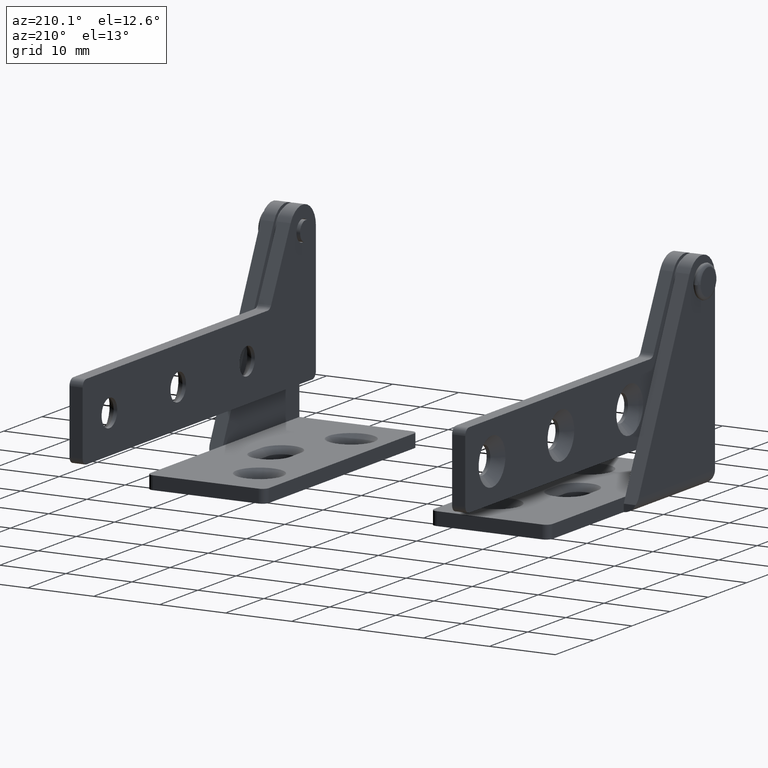
[diagram: clean part render]
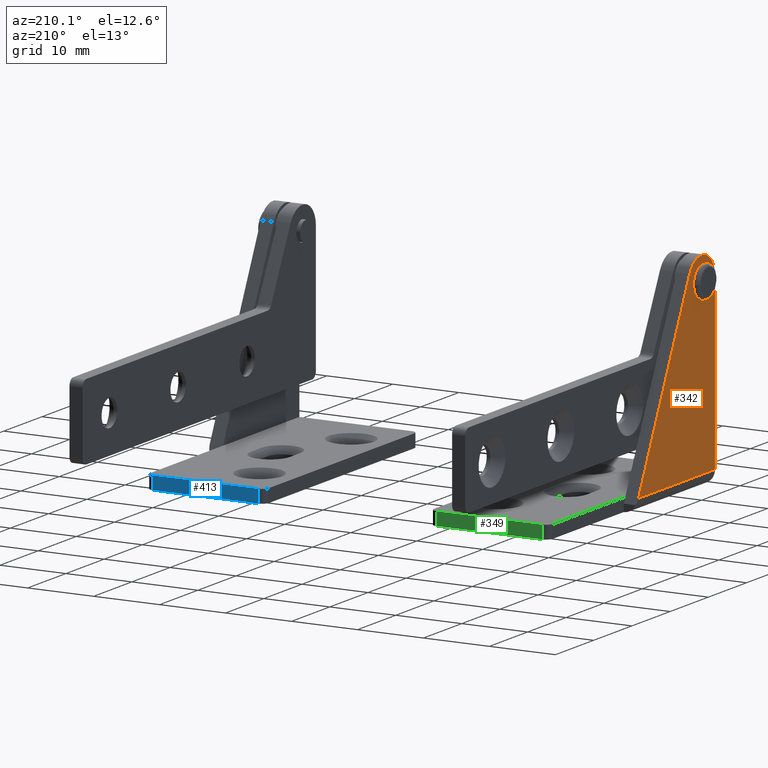
[diagram: same view with three faces highlighted in distinct colors, each labeled with its STEP entity id]
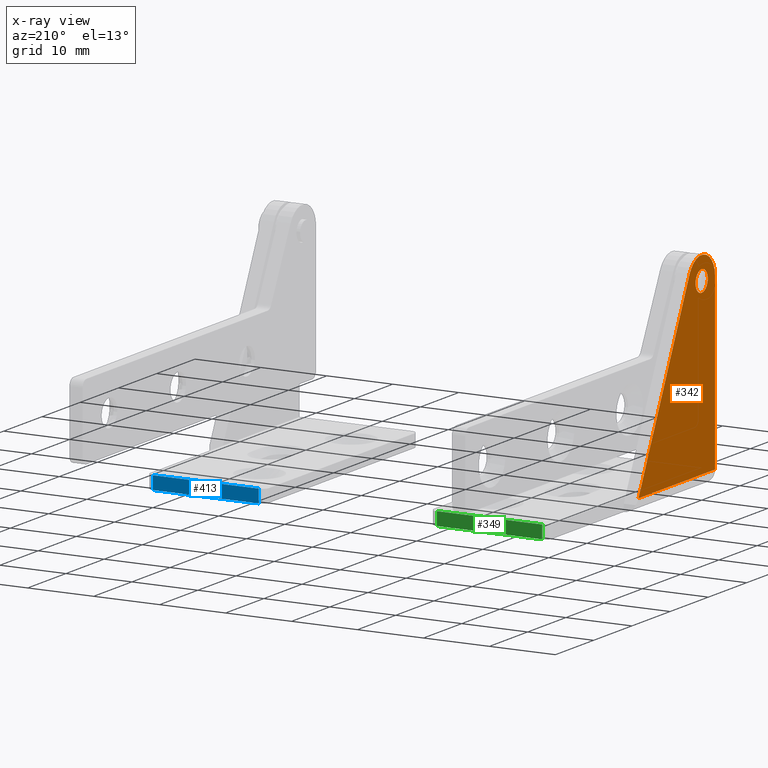
[diagram: x-ray of the same camera — body ghosted, the three highlighted faces saturated]
A machine part, auxiliary view with three faces highlighted in distinct colors.
The next image is the same camera in x-ray (body ghosted, the three faces saturated) — at least one of them is partly hidden behind the body in this view.
Their STEP definitions:

[orange] entity #342 — the highlighted planar face has unit normal (-1, 0, 0).
#342=ADVANCED_FACE('',(#561,#562),#560,.T.);
#560=PLANE('',#2083);
#561=FACE_OUTER_BOUND('',#2084,.T.);
#562=FACE_BOUND('',#2085,.T.);
#2080=CARTESIAN_POINT('',(0.00000000000E+000,-5.50000000000E+000,-2.90035143471E+001));
#2081=DIRECTION('',(-1.00000000000E+000,0.00000000000E+000,0.00000000000E+000));
#2082=DIRECTION('',(0.00000000000E+000,0.00000000000E+000,1.00000000000E+000));
#2083=AXIS2_PLACEMENT_3D('',#2080,#2081,#2082);
#2084=EDGE_LOOP('',(#3068,#3069,#3070,#3071));
#2085=EDGE_LOOP('',(#3072,#3073,#3074));
#3068=ORIENTED_EDGE('',*,*,#3756,.T.);
#3069=ORIENTED_EDGE('',*,*,#3757,.T.);
#3070=ORIENTED_EDGE('',*,*,#3758,.T.);
#3071=ORIENTED_EDGE('',*,*,#3759,.T.);
#3072=ORIENTED_EDGE('',*,*,#3760,.T.);
#3073=ORIENTED_EDGE('',*,*,#3761,.T.);
#3074=ORIENTED_EDGE('',*,*,#3762,.T.);
#3756=EDGE_CURVE('',#4210,#4211,#4212,.T.);
#3757=EDGE_CURVE('',#4211,#4218,#4219,.T.);
#3758=EDGE_CURVE('',#4218,#4225,#4226,.T.);
#3759=EDGE_CURVE('',#4225,#4210,#4232,.T.);
#3760=EDGE_CURVE('',#4238,#4239,#4240,.T.);
#3761=EDGE_CURVE('',#4239,#4246,#4247,.T.);
#3762=EDGE_CURVE('',#4246,#4238,#4253,.T.);
#4210=VERTEX_POINT('',#6493);
#4211=VERTEX_POINT('',#6494);
#4212=LINE('',#6495,#6496);
#4218=VERTEX_POINT('',#6498);
#4219=LINE('',#6499,#6500);
#4225=VERTEX_POINT('',#6502);
#4226=LINE('',#6503,#6504);
#4232=CIRCLE('',#6509,3.50000000000E+000);
#4238=VERTEX_POINT('',#6510);
#4239=VERTEX_POINT('',#6511);
#4240=CIRCLE('',#6515,1.60000000000E+000);
#4246=VERTEX_POINT('',#6516);
#4247=CIRCLE('',#6520,1.60000000000E+000);
#4253=CIRCLE('',#6524,1.60000000000E+000);
#6493=CARTESIAN_POINT('',(0.00000000000E+000,3.14915861262E+000,1.52735065801E+000));
#6494=CARTESIAN_POINT('',(0.00000000000E+000,1.65000000000E+001,-2.60000000000E+001));
#6495=CARTESIAN_POINT('',(0.00000000000E+000,3.14915861262E+000,1.52735065801E+000));
#6496=VECTOR('',#6497,3.05941170816E+001);
#6497=DIRECTION('',(0.00000000000E+000,4.36385902289E-001,-8.99759603607E-001));
#6498=CARTESIAN_POINT('',(0.00000000000E+000,-3.50000000000E+000,-2.60000000000E+001));
#6499=CARTESIAN_POINT('',(0.00000000000E+000,1.65000000000E+001,-2.60000000000E+001));
#6500=VECTOR('',#6501,2.00000000000E+001);
#6501=DIRECTION('',(0.00000000000E+000,-1.00000000000E+000,0.00000000000E+000));
#6502=CARTESIAN_POINT('',(0.00000000000E+000,-3.50000000000E+000,-1.82610864410E-014));
#6503=CARTESIAN_POINT('',(0.00000000000E+000,-3.50000000000E+000,-2.60000000000E+001));
#6504=VECTOR('',#6505,2.60000000000E+001);
#6505=DIRECTION('',(0.00000000000E+000,1.20074890202E-014,1.00000000000E+000));
#6506=CARTESIAN_POINT('',(0.00000000000E+000,0.00000000000E+000,0.00000000000E+000));
#6507=DIRECTION('',(-1.00000000000E+000,0.00000000000E+000,0.00000000000E+000));
#6508=DIRECTION('',(-0.00000000000E+000,-0.00000000000E+000,-1.00000000000E+000));
#6509=AXIS2_PLACEMENT_3D('',#6506,#6507,#6508);
#6510=CARTESIAN_POINT('',(0.00000000000E+000,1.60000000000E+000,0.00000000000E+000));
#6511=CARTESIAN_POINT('',(0.00000000000E+000,-1.66076896601E-004,1.59999999138E+000));
#6512=CARTESIAN_POINT('',(0.00000000000E+000,0.00000000000E+000,0.00000000000E+000));
#6513=DIRECTION('',(1.00000000000E+000,0.00000000000E+000,0.00000000000E+000));
#6514=DIRECTION('',(0.00000000000E+000,1.00000000000E+000,-1.22460635382E-016));
#6515=AXIS2_PLACEMENT_3D('',#6512,#6513,#6514);
#6516=CARTESIAN_POINT('',(0.00000000000E+000,8.72717015901E-006,-1.59999999998E+000));
#6517=CARTESIAN_POINT('',(0.00000000000E+000,0.00000000000E+000,0.00000000000E+000));
#6518=DIRECTION('',(1.00000000000E+000,0.00000000000E+000,0.00000000000E+000));
#6519=DIRECTION('',(0.00000000000E+000,1.00000000000E+000,-1.22460635382E-016));
#6520=AXIS2_PLACEMENT_3D('',#6517,#6518,#6519);
#6521=CARTESIAN_POINT('',(0.00000000000E+000,0.00000000000E+000,0.00000000000E+000));
#6522=DIRECTION('',(1.00000000000E+000,0.00000000000E+000,0.00000000000E+000));
#6523=DIRECTION('',(0.00000000000E+000,1.00000000000E+000,-1.22460635382E-016));
#6524=AXIS2_PLACEMENT_3D('',#6521,#6522,#6523);

[blue] entity #413 — the highlighted planar face has unit normal (0, 1, 0).
#413=ADVANCED_FACE('',(#1296),#1295,.T.);
#1295=PLANE('',#2543);
#1296=FACE_OUTER_BOUND('',#2544,.T.);
#2540=CARTESIAN_POINT('',(2.06000000000E+001,-4.35000000000E+001,-2.82000000000E+001));
#2541=DIRECTION('',(0.00000000000E+000,-1.00000000000E+000,2.40073338193E-014));
#2542=DIRECTION('',(0.00000000000E+000,2.40073338193E-014,1.00000000000E+000));
#2543=AXIS2_PLACEMENT_3D('',#2540,#2541,#2542);
#2544=EDGE_LOOP('',(#3446,#3447,#3448,#3449));
#3446=ORIENTED_EDGE('',*,*,#3952,.T.);
#3447=ORIENTED_EDGE('',*,*,#3966,.F.);
#3448=ORIENTED_EDGE('',*,*,#3930,.F.);
#3449=ORIENTED_EDGE('',*,*,#3967,.T.);
#3930=EDGE_CURVE('',#5361,#5368,#5369,.T.);
#3952=EDGE_CURVE('',#5519,#5512,#5520,.T.);
#3966=EDGE_CURVE('',#5368,#5512,#5615,.T.);
#3967=EDGE_CURVE('',#5361,#5519,#5621,.T.);
#5361=VERTEX_POINT('',#7173);
#5368=VERTEX_POINT('',#7178);
#5369=LINE('',#7179,#7180);
#5512=VERTEX_POINT('',#7271);
#5519=VERTEX_POINT('',#7276);
#5520=LINE('',#7277,#7278);
#5615=LINE('',#7337,#7338);
#5621=LINE('',#7340,#7341);
#7173=CARTESIAN_POINT('',(1.90000000000E+001,-4.35000000000E+001,-2.80000000000E+001));
#7178=CARTESIAN_POINT('',(3.00000000000E+000,-4.35000000000E+001,-2.80000000000E+001));
#7179=CARTESIAN_POINT('',(1.90000000000E+001,-4.35000000000E+001,-2.80000000000E+001));
#7180=VECTOR('',#7181,1.60000000000E+001);
#7181=DIRECTION('',(-1.00000000000E+000,0.00000000000E+000,0.00000000000E+000));
#7271=CARTESIAN_POINT('',(3.00000000000E+000,-4.35000000000E+001,-2.60000000000E+001));
#7276=CARTESIAN_POINT('',(1.90000000000E+001,-4.35000000000E+001,-2.60000000000E+001));
#7277=CARTESIAN_POINT('',(1.90000000000E+001,-4.35000000000E+001,-2.60000000000E+001));
#7278=VECTOR('',#7279,1.60000000000E+001);
#7279=DIRECTION('',(-1.00000000000E+000,0.00000000000E+000,0.00000000000E+000));
#7337=CARTESIAN_POINT('',(3.00000000000E+000,-4.35000000000E+001,-2.80000000000E+001));
#7338=VECTOR('',#7339,2.00000000000E+000);
#7339=DIRECTION('',(0.00000000000E+000,2.48689957516E-014,1.00000000000E+000));
#7340=CARTESIAN_POINT('',(1.90000000000E+001,-4.35000000000E+001,-2.80000000000E+001));
#7341=VECTOR('',#7342,2.00000000000E+000);
#7342=DIRECTION('',(0.00000000000E+000,2.48689957516E-014,1.00000000000E+000));

[green] entity #349 — the highlighted planar face has unit normal (0, 1, 0).
#349=ADVANCED_FACE('',(#635),#634,.T.);
#634=PLANE('',#2122);
#635=FACE_OUTER_BOUND('',#2123,.T.);
#2119=CARTESIAN_POINT('',(1.40000000000E+000,3.65000000000E+001,-2.82000000000E+001));
#2120=DIRECTION('',(0.00000000000E+000,1.00000000000E+000,0.00000000000E+000));
#2121=DIRECTION('',(0.00000000000E+000,-0.00000000000E+000,1.00000000000E+000));
#2122=AXIS2_PLACEMENT_3D('',#2119,#2120,#2121);
#2123=EDGE_LOOP('',(#3112,#3113,#3114,#3115));
#3112=ORIENTED_EDGE('',*,*,#3791,.F.);
#3113=ORIENTED_EDGE('',*,*,#3792,.F.);
#3114=ORIENTED_EDGE('',*,*,#3771,.T.);
#3115=ORIENTED_EDGE('',*,*,#3793,.T.);
#3771=EDGE_CURVE('',#4314,#4307,#4315,.T.);
#3791=EDGE_CURVE('',#4449,#4450,#4451,.T.);
#3792=EDGE_CURVE('',#4314,#4449,#4457,.T.);
#3793=EDGE_CURVE('',#4307,#4450,#4463,.T.);
#4307=VERTEX_POINT('',#6552);
#4314=VERTEX_POINT('',#6557);
#4315=LINE('',#6558,#6559);
#4449=VERTEX_POINT('',#6642);
#4450=VERTEX_POINT('',#6643);
#4451=LINE('',#6644,#6645);
#4457=LINE('',#6647,#6648);
#4463=LINE('',#6650,#6651);
#6552=CARTESIAN_POINT('',(3.00000000000E+000,3.65000000000E+001,-2.80000000000E+001));
#6557=CARTESIAN_POINT('',(1.90000000000E+001,3.65000000000E+001,-2.80000000000E+001));
#6558=CARTESIAN_POINT('',(1.90000000000E+001,3.65000000000E+001,-2.80000000000E+001));
#6559=VECTOR('',#6560,1.60000000000E+001);
#6560=DIRECTION('',(-1.00000000000E+000,0.00000000000E+000,0.00000000000E+000));
#6642=CARTESIAN_POINT('',(1.90000000000E+001,3.65000000000E+001,-2.60000000000E+001));
#6643=CARTESIAN_POINT('',(3.00000000000E+000,3.65000000000E+001,-2.60000000000E+001));
#6644=CARTESIAN_POINT('',(1.90000000000E+001,3.65000000000E+001,-2.60000000000E+001));
#6645=VECTOR('',#6646,1.60000000000E+001);
#6646=DIRECTION('',(-1.00000000000E+000,0.00000000000E+000,0.00000000000E+000));
#6647=CARTESIAN_POINT('',(1.90000000000E+001,3.65000000000E+001,-2.80000000000E+001));
#6648=VECTOR('',#6649,2.00000000000E+000);
#6649=DIRECTION('',(0.00000000000E+000,0.00000000000E+000,1.00000000000E+000));
#6650=CARTESIAN_POINT('',(3.00000000000E+000,3.65000000000E+001,-2.80000000000E+001));
#6651=VECTOR('',#6652,2.00000000000E+000);
#6652=DIRECTION('',(0.00000000000E+000,0.00000000000E+000,1.00000000000E+000));